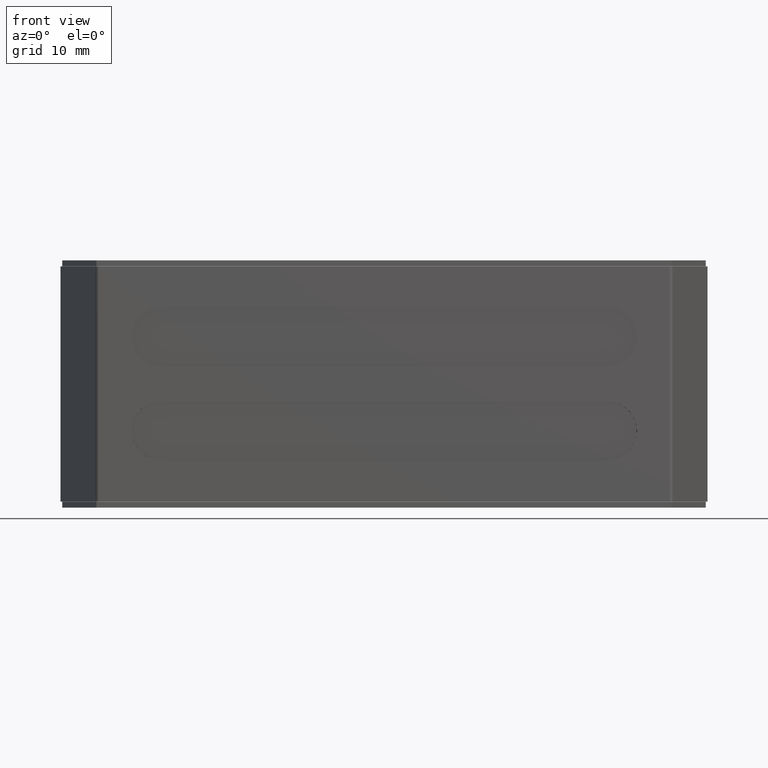
[diagram: clean part render]
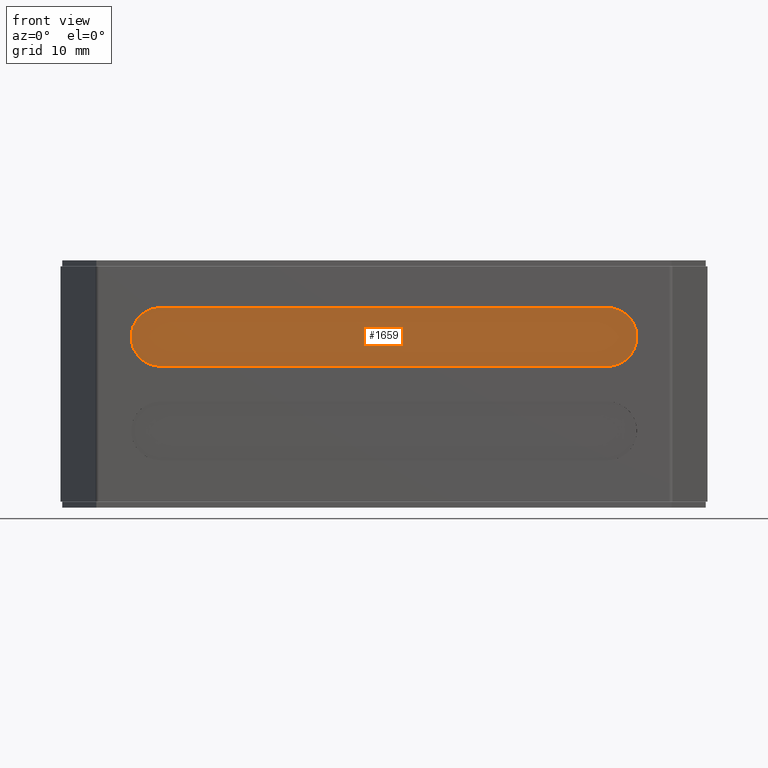
[diagram: same view with one face highlighted and labeled with its STEP entity id]
A machine part, front view. The second image highlights one B-rep face of the part: STEP entity #1659.
In plain terms, the highlighted planar face has unit normal (0, -1, -0).
Its self-contained STEP definition (entity closure, byte-faithful):
#1647 = EDGE_CURVE ( 'NONE', #1871, #1881, #6806, .T. ) ;
#1648 = ORIENTED_EDGE ( 'NONE', *, *, #1873, .T. ) ;
#1649 = EDGE_CURVE ( 'NONE', #1654, #1874, #6801, .T. ) ;
#1652 = ORIENTED_EDGE ( 'NONE', *, *, #1653, .T. ) ;
#1653 = EDGE_CURVE ( 'NONE', #1880, #1654, #6797, .T. ) ;
#1654 = VERTEX_POINT ( 'NONE', #6692 ) ;
#1655 = ORIENTED_EDGE ( 'NONE', *, *, #1649, .T. ) ;
#1659 = ADVANCED_FACE ( 'NONE', ( #6641 ), #6675, .T. ) ;
#1660 = EDGE_LOOP ( 'NONE', ( #1661, #1652, #1655, #1648, #1681 ) ) ;
#1661 = ORIENTED_EDGE ( 'NONE', *, *, #1662, .F. ) ;
#1662 = EDGE_CURVE ( 'NONE', #1880, #1881, #6674, .T. ) ;
#1681 = ORIENTED_EDGE ( 'NONE', *, *, #1647, .T. ) ;
#1871 = VERTEX_POINT ( 'NONE', #7399 ) ;
#1873 = EDGE_CURVE ( 'NONE', #1874, #1871, #7398, .T. ) ;
#1874 = VERTEX_POINT ( 'NONE', #7393 ) ;
#1880 = VERTEX_POINT ( 'NONE', #7374 ) ;
#1881 = VERTEX_POINT ( 'NONE', #7369 ) ;
#6641 = FACE_OUTER_BOUND ( 'NONE', #1660, .T. ) ;
#6667 = DIRECTION ( 'NONE',  ( 1.000000000000000000, 0.0000000000000000000, 0.0000000000000000000 ) ) ;
#6668 = VECTOR ( 'NONE', #6667, 1000.000000000000000 ) ;
#6669 = CARTESIAN_POINT ( 'NONE',  ( -19.18518518518517300, -3.572839506172905900, -3.499999999979084300 ) ) ;
#6670 = DIRECTION ( 'NONE',  ( -1.000000000000000000, 0.0000000000000000000, -6.123031769111886300E-017 ) ) ;
#6671 = DIRECTION ( 'NONE',  ( 0.0000000000000000000, -1.000000000000000000, -0.0000000000000000000 ) ) ;
#6672 = CARTESIAN_POINT ( 'NONE',  ( -22.68518518518516900, -3.572839506172909500, -0.4999999999790850100 ) ) ;
#6673 = AXIS2_PLACEMENT_3D ( 'NONE', #6672, #6671, #6670 ) ;
#6674 = LINE ( 'NONE', #6669, #6668 ) ;
#6675 = PLANE ( 'NONE',  #6673 ) ;
#6692 = CARTESIAN_POINT ( 'NONE',  ( -19.18518518518517300, -3.572839506172909500, -8.499999999979085200 ) ) ;
#6693 = DIRECTION ( 'NONE',  ( 1.000000000000000000, 1.734723475976805600E-016, 0.0000000000000000000 ) ) ;
#6694 = DIRECTION ( 'NONE',  ( 1.261617073437677800E-016, -1.000000000000000000, 0.0000000000000000000 ) ) ;
#6695 = CARTESIAN_POINT ( 'NONE',  ( -19.18518518518517300, -3.572839506172909500, -5.999999999979085200 ) ) ;
#6696 = AXIS2_PLACEMENT_3D ( 'NONE', #6695, #6694, #6693 ) ;
#6797 = CIRCLE ( 'NONE', #6696, 2.500000000000002200 ) ;
#6798 = DIRECTION ( 'NONE',  ( 1.000000000000000000, 0.0000000000000000000, 0.0000000000000000000 ) ) ;
#6799 = VECTOR ( 'NONE', #6798, 1000.000000000000000 ) ;
#6800 = CARTESIAN_POINT ( 'NONE',  ( -19.18518518518517300, -3.572839506172905900, -8.499999999979085200 ) ) ;
#6801 = LINE ( 'NONE', #6800, #6799 ) ;
#6802 = DIRECTION ( 'NONE',  ( -1.000000000000000000, -1.734723475976805600E-016, 0.0000000000000000000 ) ) ;
#6803 = DIRECTION ( 'NONE',  ( 1.261617073437677800E-016, -1.000000000000000000, 0.0000000000000000000 ) ) ;
#6804 = CARTESIAN_POINT ( 'NONE',  ( 18.81481481481482700, -3.572839506172905900, -5.999999999979084300 ) ) ;
#6805 = AXIS2_PLACEMENT_3D ( 'NONE', #6804, #6803, #6802 ) ;
#6806 = CIRCLE ( 'NONE', #6805, 2.500000000000002200 ) ;
#7369 = CARTESIAN_POINT ( 'NONE',  ( 18.81481481481482700, -3.572839506172909500, -3.499999999979084300 ) ) ;
#7374 = CARTESIAN_POINT ( 'NONE',  ( -19.18518518518517300, -3.572839506172909500, -3.499999999979084300 ) ) ;
#7393 = CARTESIAN_POINT ( 'NONE',  ( 18.81481481481482700, -3.572839506172905900, -8.499999999979085200 ) ) ;
#7394 = DIRECTION ( 'NONE',  ( -1.000000000000000000, -1.734723475976805600E-016, 0.0000000000000000000 ) ) ;
#7395 = DIRECTION ( 'NONE',  ( 1.261617073437677800E-016, -1.000000000000000000, 0.0000000000000000000 ) ) ;
#7396 = CARTESIAN_POINT ( 'NONE',  ( 18.81481481481482700, -3.572839506172905900, -5.999999999979084300 ) ) ;
#7397 = AXIS2_PLACEMENT_3D ( 'NONE', #7396, #7395, #7394 ) ;
#7398 = CIRCLE ( 'NONE', #7397, 2.500000000000002200 ) ;
#7399 = CARTESIAN_POINT ( 'NONE',  ( 21.31481481481482700, -3.572839506172905500, -5.999999999979084300 ) ) ;